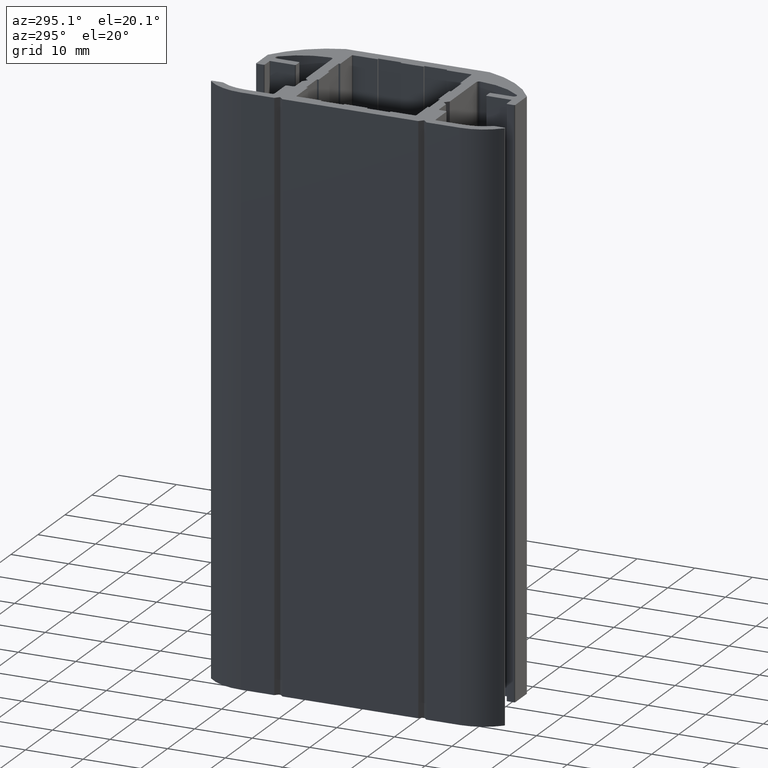
[diagram: clean part render]
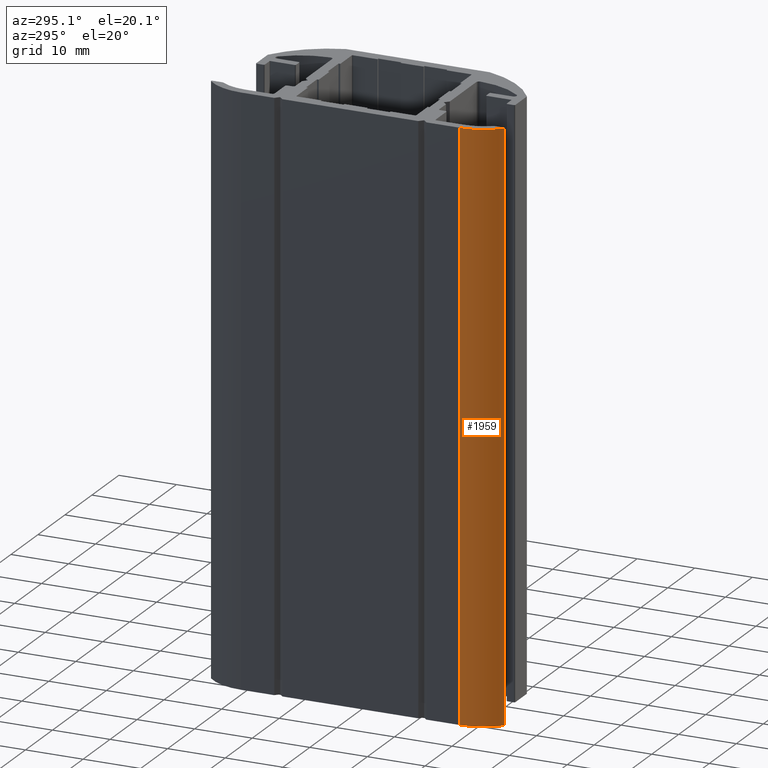
[diagram: same view with one face highlighted and labeled with its STEP entity id]
A machine part, auxiliary view. The second image highlights one B-rep face of the part: STEP entity #1959.
In plain terms, the highlighted cylindrical surface (partial cylindrical patch) has radius 9 mm, axis along (0, 0, 1).
Its self-contained STEP definition (entity closure, byte-faithful):
#1901=CARTESIAN_POINT('',(-24.999999997365876,-18.999999998258033,0.0));
#1902=VERTEX_POINT('',#1901);
#1909=CARTESIAN_POINT('',(-24.999999997365876,-18.999999998258033,100.0));
#1910=VERTEX_POINT('',#1909);
#1911=CARTESIAN_POINT('',(-24.999999997365876,-18.999999998258033,0.0));
#1912=DIRECTION('',(0.0,0.0,1.0));
#1913=VECTOR('',#1912,100.0);
#1914=LINE('',#1911,#1913);
#1915=EDGE_CURVE('',#1902,#1910,#1914,.T.);
#1927=CARTESIAN_POINT('',(-15.999999998265821,-18.999999998258033,0.0));
#1928=DIRECTION('',(0.0,0.0,1.0));
#1929=DIRECTION('',(1.0,0.0,0.0));
#1930=AXIS2_PLACEMENT_3D('',#1927,#1928,#1929);
#1931=CYLINDRICAL_SURFACE('',#1930,8.999999999099998);
#1932=CARTESIAN_POINT('',(-22.254148980318746,-25.471910109970480,0.0));
#1933=VERTEX_POINT('',#1932);
#1934=CARTESIAN_POINT('',(-15.999999998265821,-18.999999998258033,0.0));
#1935=DIRECTION('',(0.0,0.0,1.0));
#1936=DIRECTION('',(1.0,0.0,0.0));
#1937=AXIS2_PLACEMENT_3D('',#1934,#1935,#1936);
#1938=CIRCLE('',#1937,8.999999999099998);
#1939=EDGE_CURVE('',#1902,#1933,#1938,.T.);
#1940=ORIENTED_EDGE('',*,*,#1939,.T.);
#1941=CARTESIAN_POINT('',(-22.254148980318746,-25.471910109970480,100.0));
#1942=VERTEX_POINT('',#1941);
#1943=CARTESIAN_POINT('',(-22.254148980318746,-25.471910109970480,0.0));
#1944=DIRECTION('',(0.0,0.0,1.0));
#1945=VECTOR('',#1944,100.0);
#1946=LINE('',#1943,#1945);
#1947=EDGE_CURVE('',#1933,#1942,#1946,.T.);
#1948=ORIENTED_EDGE('',*,*,#1947,.T.);
#1949=CARTESIAN_POINT('',(-15.999999998265821,-18.999999998258033,100.0));
#1950=DIRECTION('',(0.0,0.0,1.0));
#1951=DIRECTION('',(1.0,0.0,0.0));
#1952=AXIS2_PLACEMENT_3D('',#1949,#1950,#1951);
#1953=CIRCLE('',#1952,8.999999999099998);
#1954=EDGE_CURVE('',#1910,#1942,#1953,.T.);
#1955=ORIENTED_EDGE('',*,*,#1954,.F.);
#1956=ORIENTED_EDGE('',*,*,#1915,.F.);
#1957=EDGE_LOOP('',(#1940,#1948,#1955,#1956));
#1958=FACE_OUTER_BOUND('',#1957,.T.);
#1959=ADVANCED_FACE('',(#1958),#1931,.T.);